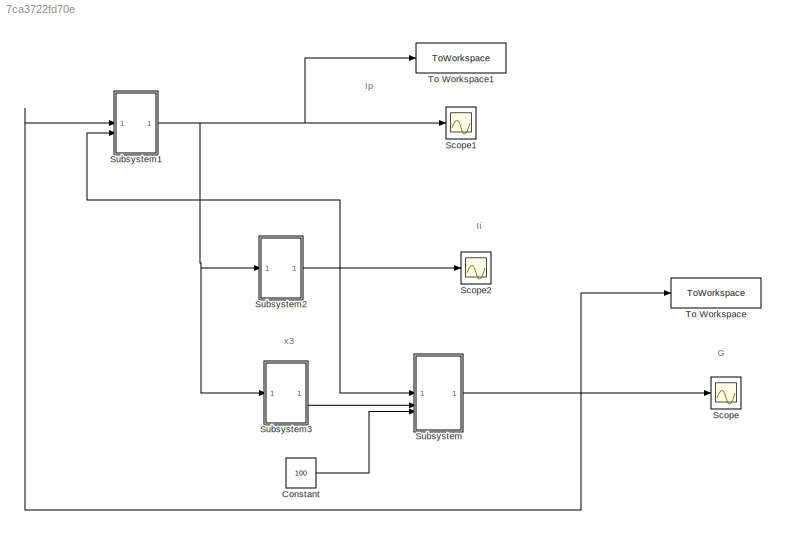
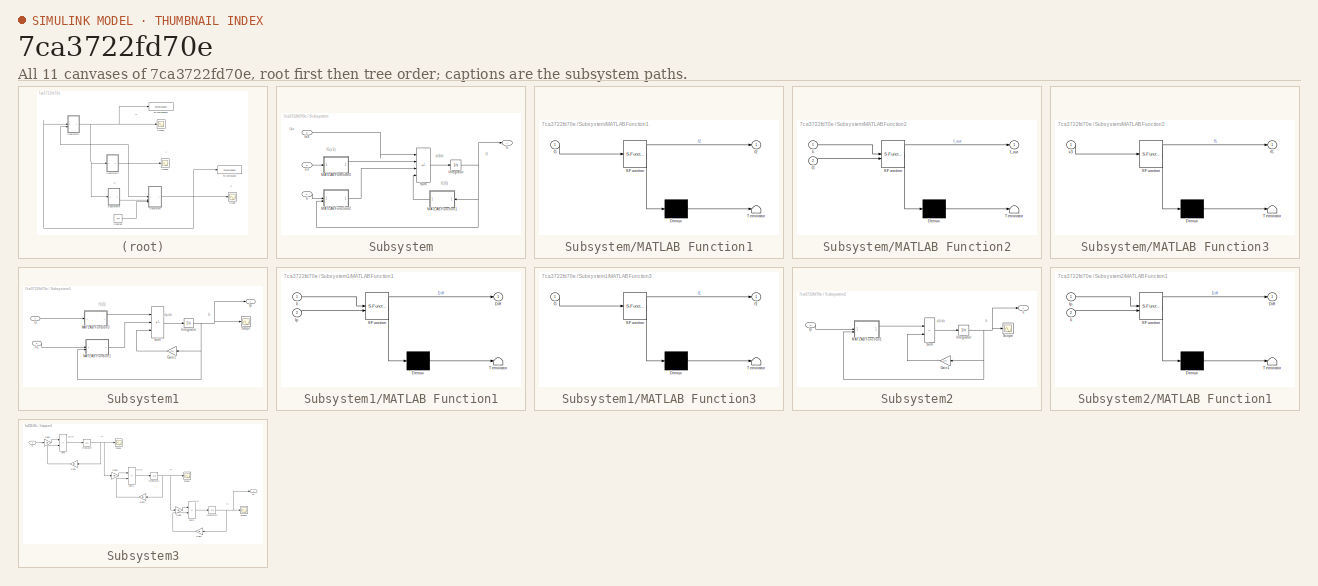
[diagram: thumbnail index - all 11 canvases of the model, root first then tree order]
MODEL slx_7ca3722fd70e
KIND model
CONFIG AbsTol = auto
CONFIG EnableMultiTasking = off
CONFIG FixedStep = auto
CONFIG MaxStep = auto
CONFIG MinStep = auto
CONFIG RelTol = 1e-3
CONFIG SampleTimeConstraint = Unconstrained
CONFIG SolverName = VariableStepAuto
CONFIG StartTime = 0.0
CONFIG StopTime = 1000
BLOCK [Constant] Constant
  Value = 100
BLOCK [Scope] Scope
  Floating = off
  NumInputPorts = 1
  ScopeSpecificationString = Simulink.scopes.TimeScopeBlockCfg('CurrentConfiguration', extmgr.ConfigurationSet(extmgr.Configuration('Core','General UI',true),extmgr.Configuration('Core','Source UI',true),extmgr.Configuration('Sources','WiredSimulink',true,'DataLoggingVariableName','ScopeData4'),extmgr.Configuration('Visuals','Time Domain',true,'SerializedDisplays',{struct('MinYLimReal','11127.96055','MaxYLimReal','12534.40582...<+1449ch>
BLOCK [Scope] Scope1
  Floating = off
  NumInputPorts = 1
  ScopeSpecificationString = Simulink.scopes.TimeScopeBlockCfg('CurrentConfiguration', extmgr.ConfigurationSet(extmgr.Configuration('Core','General UI',true),extmgr.Configuration('Core','Source UI',true),extmgr.Configuration('Sources','WiredSimulink',true,'DataLoggingVariableName','ScopeData5'),extmgr.Configuration('Visuals','Time Domain',true,'SerializedDisplays',{struct('MinYLimReal','39.20818','MaxYLimReal','143.79417','YL...<+1379ch>
BLOCK [Scope] Scope2
  Floating = off
  NumInputPorts = 1
  ScopeSpecificationString = Simulink.scopes.TimeScopeBlockCfg('CurrentConfiguration', extmgr.ConfigurationSet(extmgr.Configuration('Core','General UI',true),extmgr.Configuration('Core','Source UI',true),extmgr.Configuration('Sources','WiredSimulink',true,'DataLoggingVariableName','ScopeData6'),extmgr.Configuration('Visuals','Time Domain',true),extmgr.Configuration('Tools','Plot Navigation',true),extmgr.Configuration('Tools',...<+40ch>
BLOCK [SubSystem] Subsystem
BLOCK [Outport] Subsystem/G
BLOCK [Inport] Subsystem/Ii
BLOCK [Inport] Subsystem/In3
  Port = 3
BLOCK [Integrator] Subsystem/Integrator
  InitialCondition = G_0
BLOCK [SubSystem] Subsystem/MATLAB Function1
  ErrorFcn = Stateflow.Translate.translate
  PermitHierarchicalResolution = ExplicitOnly
  SFBlockType = MATLAB Function
  TreatAsAtomicUnit = on
BLOCK [Demux] Subsystem/MATLAB Function1/ Demux 
  Outputs = 1
BLOCK [S-Function] Subsystem/MATLAB Function1/ SFunction 
  EnableBusSupport = on
  FunctionName = sf_sfun
  PortCounts = [1 2]
  SFcnIsStateOwnerBlock = off
  SFunctionDeploymentMode = off
  Tag = Stateflow S-Function 1
BLOCK [Terminator] Subsystem/MATLAB Function1/ Terminator 
BLOCK [Inport] Subsystem/MATLAB Function1/G
BLOCK [Outport] Subsystem/MATLAB Function1/f2
  VectorParamsAs1DForOutWhenUnconnected = off
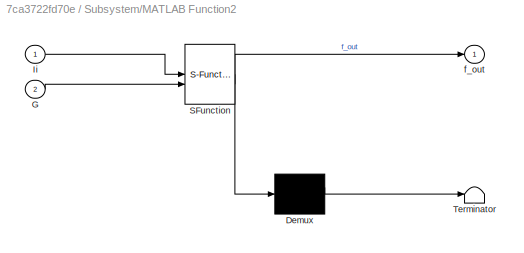
BLOCK [SubSystem] Subsystem/MATLAB Function2
  ErrorFcn = Stateflow.Translate.translate
  PermitHierarchicalResolution = ExplicitOnly
  SFBlockType = MATLAB Function
  TreatAsAtomicUnit = on
BLOCK [Demux] Subsystem/MATLAB Function2/ Demux 
  Outputs = 1
BLOCK [S-Function] Subsystem/MATLAB Function2/ SFunction 
  EnableBusSupport = on
  FunctionName = sf_sfun
  PortCounts = [2 2]
  SFcnIsStateOwnerBlock = off
  SFunctionDeploymentMode = off
  Tag = Stateflow S-Function 3
BLOCK [Terminator] Subsystem/MATLAB Function2/ Terminator 
BLOCK [Inport] Subsystem/MATLAB Function2/G
  Port = 2
BLOCK [Inport] Subsystem/MATLAB Function2/Ii
BLOCK [Outport] Subsystem/MATLAB Function2/f_out
  VectorParamsAs1DForOutWhenUnconnected = off
BLOCK [SubSystem] Subsystem/MATLAB Function3
  ErrorFcn = Stateflow.Translate.translate
  PermitHierarchicalResolution = ExplicitOnly
  SFBlockType = MATLAB Function
  TreatAsAtomicUnit = on
BLOCK [Demux] Subsystem/MATLAB Function3/ Demux 
  Outputs = 1
BLOCK [S-Function] Subsystem/MATLAB Function3/ SFunction 
  EnableBusSupport = on
  FunctionName = sf_sfun
  PortCounts = [1 2]
  SFcnIsStateOwnerBlock = off
  SFunctionDeploymentMode = off
  Tag = Stateflow S-Function 4
BLOCK [Terminator] Subsystem/MATLAB Function3/ Terminator 
BLOCK [Outport] Subsystem/MATLAB Function3/f5
  VectorParamsAs1DForOutWhenUnconnected = off
BLOCK [Inport] Subsystem/MATLAB Function3/x3
BLOCK [Sum] Subsystem/Sum
  IconShape = rectangular
  Inputs = |++--
BLOCK [Inport] Subsystem/x3
  Port = 2
BLOCK [SubSystem] Subsystem1
BLOCK [Inport] Subsystem1/G
BLOCK [Gain] Subsystem1/Gain1
  Gain = 1/tp
BLOCK [Inport] Subsystem1/Ii1
  Port = 2
BLOCK [Integrator] Subsystem1/Integrator
  InitialCondition = Ip_0
BLOCK [Outport] Subsystem1/Ip
BLOCK [SubSystem] Subsystem1/MATLAB Function1
  ErrorFcn = Stateflow.Translate.translate
  PermitHierarchicalResolution = ExplicitOnly
  SFBlockType = MATLAB Function
  TreatAsAtomicUnit = on
BLOCK [Demux] Subsystem1/MATLAB Function1/ Demux 
  Outputs = 1
BLOCK [S-Function] Subsystem1/MATLAB Function1/ SFunction 
  EnableBusSupport = on
  FunctionName = sf_sfun
  PortCounts = [2 2]
  SFcnIsStateOwnerBlock = off
  SFunctionDeploymentMode = off
  Tag = Stateflow S-Function 2
BLOCK [Terminator] Subsystem1/MATLAB Function1/ Terminator 
BLOCK [Outport] Subsystem1/MATLAB Function1/Diff
  VectorParamsAs1DForOutWhenUnconnected = off
BLOCK [Inport] Subsystem1/MATLAB Function1/Ii
BLOCK [Inport] Subsystem1/MATLAB Function1/Ip
  Port = 2
BLOCK [SubSystem] Subsystem1/MATLAB Function3
  ErrorFcn = Stateflow.Translate.translate
  PermitHierarchicalResolution = ExplicitOnly
  SFBlockType = MATLAB Function
  TreatAsAtomicUnit = on
BLOCK [Demux] Subsystem1/MATLAB Function3/ Demux 
  Outputs = 1
BLOCK [S-Function] Subsystem1/MATLAB Function3/ SFunction 
  EnableBusSupport = on
  FunctionName = sf_sfun
  PortCounts = [1 2]
  SFcnIsStateOwnerBlock = off
  SFunctionDeploymentMode = off
  Tag = Stateflow S-Function 8
BLOCK [Terminator] Subsystem1/MATLAB Function3/ Terminator 
BLOCK [Inport] Subsystem1/MATLAB Function3/G
BLOCK [Outport] Subsystem1/MATLAB Function3/f1
  VectorParamsAs1DForOutWhenUnconnected = off
BLOCK [Scope] Subsystem1/Scope
  Floating = off
  NumInputPorts = 1
  ScopeSpecificationString = Simulink.scopes.TimeScopeBlockCfg('CurrentConfiguration', extmgr.ConfigurationSet(extmgr.Configuration('Core','General UI',true),extmgr.Configuration('Core','Source UI',true),extmgr.Configuration('Sources','WiredSimulink',true,'DataLoggingVariableName','ScopeData1'),extmgr.Configuration('Visuals','Time Domain',true),extmgr.Configuration('Tools','Plot Navigation',true),extmgr.Configuration('Tools',...<+40ch>  <repeated x3 — deduplicated; at blocks: Scope>
BLOCK [Sum] Subsystem1/Sum
  IconShape = rectangular
  Inputs = |+--
BLOCK [SubSystem] Subsystem2
BLOCK [Gain] Subsystem2/Gain1
  Gain = 1/ti
BLOCK [Outport] Subsystem2/Ii
BLOCK [Integrator] Subsystem2/Integrator
  InitialCondition = Ii_0
BLOCK [Inport] Subsystem2/Ip
BLOCK [SubSystem] Subsystem2/MATLAB Function1
  ErrorFcn = Stateflow.Translate.translate
  PermitHierarchicalResolution = ExplicitOnly
  SFBlockType = MATLAB Function
  TreatAsAtomicUnit = on
BLOCK [Demux] Subsystem2/MATLAB Function1/ Demux 
  Outputs = 1
BLOCK [S-Function] Subsystem2/MATLAB Function1/ SFunction 
  EnableBusSupport = on
  FunctionName = sf_sfun
  PortCounts = [2 2]
  SFcnIsStateOwnerBlock = off
  SFunctionDeploymentMode = off
  Tag = Stateflow S-Function 5
BLOCK [Terminator] Subsystem2/MATLAB Function1/ Terminator 
BLOCK [Outport] Subsystem2/MATLAB Function1/Diff
  VectorParamsAs1DForOutWhenUnconnected = off
BLOCK [Inport] Subsystem2/MATLAB Function1/Ii
  Port = 2
BLOCK [Inport] Subsystem2/MATLAB Function1/Ip
BLOCK [Scope] Subsystem2/Scope
  Floating = off
  NumInputPorts = 1
BLOCK [Sum] Subsystem2/Sum
  IconShape = rectangular
  Inputs = |+-
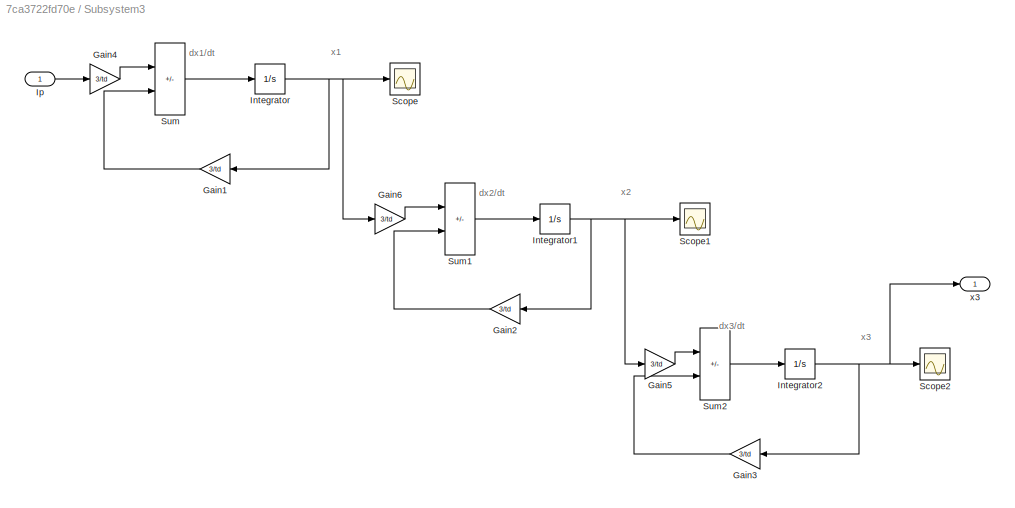
BLOCK [SubSystem] Subsystem3
BLOCK [Gain] Subsystem3/Gain1
  Gain = 3/td
BLOCK [Gain] Subsystem3/Gain2
  Gain = 3/td
BLOCK [Gain] Subsystem3/Gain3
  Gain = 3/td
BLOCK [Gain] Subsystem3/Gain4
  Gain = 3/td
BLOCK [Gain] Subsystem3/Gain5
  Gain = 3/td
BLOCK [Gain] Subsystem3/Gain6
  Gain = 3/td
BLOCK [Integrator] Subsystem3/Integrator
  InitialCondition = h_10
BLOCK [Integrator] Subsystem3/Integrator1
  InitialCondition = h_20
BLOCK [Integrator] Subsystem3/Integrator2
  InitialCondition = h_30
BLOCK [Inport] Subsystem3/Ip
BLOCK [Scope] Subsystem3/Scope
  Floating = off
  NumInputPorts = 1
BLOCK [Scope] Subsystem3/Scope1
  Floating = off
  NumInputPorts = 1
  ScopeSpecificationString = Simulink.scopes.TimeScopeBlockCfg('CurrentConfiguration', extmgr.ConfigurationSet(extmgr.Configuration('Core','General UI',true),extmgr.Configuration('Core','Source UI',true),extmgr.Configuration('Sources','WiredSimulink',true,'DataLoggingVariableName','ScopeData2'),extmgr.Configuration('Visuals','Time Domain',true),extmgr.Configuration('Tools','Plot Navigation',true),extmgr.Configuration('Tools',...<+40ch>
BLOCK [Scope] Subsystem3/Scope2
  Floating = off
  NumInputPorts = 1
  ScopeSpecificationString = Simulink.scopes.TimeScopeBlockCfg('CurrentConfiguration', extmgr.ConfigurationSet(extmgr.Configuration('Core','General UI',true),extmgr.Configuration('Core','Source UI',true),extmgr.Configuration('Sources','WiredSimulink',true,'DataLoggingVariableName','ScopeData3'),extmgr.Configuration('Visuals','Time Domain',true),extmgr.Configuration('Tools','Plot Navigation',true),extmgr.Configuration('Tools',...<+40ch>
BLOCK [Sum] Subsystem3/Sum
  IconShape = rectangular
  Inputs = |+-
BLOCK [Sum] Subsystem3/Sum1
  IconShape = rectangular
  Inputs = |+-
BLOCK [Sum] Subsystem3/Sum2
  IconShape = rectangular
  Inputs = |+-
BLOCK [Outport] Subsystem3/x3
BLOCK [ToWorkspace] To Workspace
  FixptAsFi = on
  MaxDataPoints = inf
  SampleTime = -1
  Save2DSignal = 2-D array (concatenate along first dimension)
  VariableName = G
BLOCK [ToWorkspace] To Workspace1
  FixptAsFi = on
  MaxDataPoints = inf
  SampleTime = -1
  Save2DSignal = 2-D array (concatenate along first dimension)
  VariableName = Ip
ANNOTATION (root): G
ANNOTATION (root): Ii
ANNOTATION (root): Ip
ANNOTATION (root): x3
ANNOTATION Subsystem: G
ANNOTATION Subsystem: Uin
ANNOTATION Subsystem: dG/dt
ANNOTATION Subsystem: f2(G)
ANNOTATION Subsystem: f5(x3)
ANNOTATION Subsystem1: G
ANNOTATION Subsystem1: dIp/dt
ANNOTATION Subsystem1: f1(G)
ANNOTATION Subsystem2: Ii
ANNOTATION Subsystem2: dIi/dt
ANNOTATION Subsystem3: dx1/dt
ANNOTATION Subsystem3: dx2/dt
ANNOTATION Subsystem3: dx3/dt
ANNOTATION Subsystem3: x1
ANNOTATION Subsystem3: x2
ANNOTATION Subsystem3: x3
LINE Constant:1 -> Subsystem:3
LINE Subsystem/Ii:1 -> Subsystem/MATLAB Function2:1
LINE Subsystem/In3:1 -> Subsystem/Sum:1
NET Subsystem/Integrator:1 -> Subsystem/G:1, Subsystem/MATLAB Function1:1, Subsystem/MATLAB Function2:2
LINE Subsystem/MATLAB Function1:1 -> Subsystem/Sum:4
LINE Subsystem/MATLAB Function2:1 -> Subsystem/Sum:3
LINE Subsystem/MATLAB Function3:1 -> Subsystem/Sum:2
LINE Subsystem/Sum:1 -> Subsystem/Integrator:1
LINE Subsystem/x3:1 -> Subsystem/MATLAB Function3:1
LINE Subsystem1/G:1 -> Subsystem1/MATLAB Function3:1
LINE Subsystem1/Gain1:1 -> Subsystem1/Sum:3
LINE Subsystem1/Ii1:1 -> Subsystem1/MATLAB Function1:1
NET Subsystem1/Integrator:1 -> Subsystem1/Gain1:1, Subsystem1/Ip:1, Subsystem1/MATLAB Function1:2, Subsystem1/Scope:1
LINE Subsystem1/MATLAB Function1:1 -> Subsystem1/Sum:2
LINE Subsystem1/MATLAB Function3:1 -> Subsystem1/Sum:1
LINE Subsystem1/Sum:1 -> Subsystem1/Integrator:1
NET Subsystem1:1 -> Scope1:1, Subsystem2:1, Subsystem3:1, To Workspace1:1
LINE Subsystem2/Gain1:1 -> Subsystem2/Sum:2
NET Subsystem2/Integrator:1 -> Subsystem2/Gain1:1, Subsystem2/Ii:1, Subsystem2/MATLAB Function1:2, Subsystem2/Scope:1
LINE Subsystem2/Ip:1 -> Subsystem2/MATLAB Function1:1
LINE Subsystem2/MATLAB Function1:1 -> Subsystem2/Sum:1
LINE Subsystem2/Sum:1 -> Subsystem2/Integrator:1
NET Subsystem2:1 -> Scope2:1, Subsystem1:2, Subsystem:1
LINE Subsystem3/Gain1:1 -> Subsystem3/Sum:2
LINE Subsystem3/Gain2:1 -> Subsystem3/Sum1:2
LINE Subsystem3/Gain3:1 -> Subsystem3/Sum2:2
LINE Subsystem3/Gain4:1 -> Subsystem3/Sum:1
LINE Subsystem3/Gain5:1 -> Subsystem3/Sum2:1
LINE Subsystem3/Gain6:1 -> Subsystem3/Sum1:1
NET Subsystem3/Integrator1:1 -> Subsystem3/Gain2:1, Subsystem3/Gain5:1, Subsystem3/Scope1:1
NET Subsystem3/Integrator2:1 -> Subsystem3/Gain3:1, Subsystem3/Scope2:1, Subsystem3/x3:1
NET Subsystem3/Integrator:1 -> Subsystem3/Gain1:1, Subsystem3/Gain6:1, Subsystem3/Scope:1
LINE Subsystem3/Ip:1 -> Subsystem3/Gain4:1
LINE Subsystem3/Sum1:1 -> Subsystem3/Integrator1:1
LINE Subsystem3/Sum2:1 -> Subsystem3/Integrator2:1
LINE Subsystem3/Sum:1 -> Subsystem3/Integrator:1
LINE Subsystem3:1 -> Subsystem:2
NET Subsystem:1 -> Scope:1, Subsystem1:1, To Workspace:1
note: NET lines group one-source signal fan-out (src -> all destinations, sorted); 1:1 wires keep LINE
CHART Subsystem1/MATLAB Function1 states=1 transitions=1
  STATE_LABEL 'eML_blk_kernel()'
  STATE_LABEL "SCRIPT:\nfunction Diff = fcn(Ii,Ip)\n% Constants\nVp = 3;  %'Vp' [L] \nVi = 11; %'Vp' [L] \n% Vg = 10; %'Vp' [L]\nE = 0.2; % [L min^-1]\n% tp = 6;  % min\n% ti = 100;% min\n% td = 36;% min\n% Rm = 210;% [mU min^-1]{Lui 2008}\n% % p.Rm = 21;% [mU min^-1]{Tolic 2000}\n% a1 = 300; %mg/L\n% C1 = 2000;% mg/L\n% C2 = 144;% mg/L\n% C3 = 1000;% mg/L\n% C4 = 80;% mU/L\n% C5 = 26;% mU/L\n% Ub = 72;% mg/min\n% U0 = 40;% mg/min...<+228ch>"
CHART Subsystem/MATLAB Function2 states=1 transitions=1
  STATE_LABEL 'eML_blk_kernel()'
  STATE_LABEL "SCRIPT:\nfunction f_out = fcn(Ii,G)\n% Constants\n% Vp = 3;  %'Vp' [L] \n% Vi = 11; %'Vp' [L] \n% Vg = 10; %'Vp' [L]\n% E = 0.2; % [L min^-1]\n% tp = 6;  % min\n% ti = 100;% min\n% td = 36;% min\n% Rm = 210;% [mU min^-1]{Lui 2008}\n% % p.Rm = 21;% [mU min^-1]{Tolic 2000}\n% a1 = 300; %mg/L\n% C1 = 2000;% mg/L\n% C2 = 144;% mg/L\n% C3 = 1000;% mg/L\n% C4 = 80;% mU/L\n% C5 = 26;% mU/L\n% Ub = 72;% mg/min\n% U0 = 40;% ...<+448ch>"
CHART Subsystem/MATLAB Function3 states=1 transitions=1
  STATE_LABEL 'eML_blk_kernel()'
  STATE_LABEL "SCRIPT:\nfunction f5 = fcn(x3)\n% Constants\n% Vp = 3;  %'Vp' [L] \n% Vi = 11; %'Vp' [L] \n% Vg = 10; %'Vp' [L]\n% E = 0.2; % [L min^-1]\n% tp = 6;  % min\n% ti = 100;% min\n% td = 36;% min\n% Rm = 210;% [mU min^-1]{Lui 2008}\n% % p.Rm = 21;% [mU min^-1]{Tolic 2000}\n% a1 = 300; %mg/L\n% C1 = 2000;% mg/L\n% C2 = 144;% mg/L\n% C3 = 1000;% mg/L\n% C4 = 80;% mU/L\n% C5 = 26;% mU/L\n% Ub = 72;% mg/min\n% U0 = 40;% mg/mi...<+206ch>"
CHART Subsystem2/MATLAB Function1 states=1 transitions=1
  STATE_LABEL 'eML_blk_kernel()'
  STATE_LABEL "SCRIPT:\nfunction Diff = fcn(Ip,Ii)\n% Constants\nVp = 3;  %'Vp' [L] \nVi = 11; %'Vp' [L] \n% Vg = 10; %'Vp' [L]\nE = 0.2; % [L min^-1]\n% tp = 6;  % min\n% ti = 100;% min\n% td = 36;% min\n% Rm = 210;% [mU min^-1]{Lui 2008}\n% % p.Rm = 21;% [mU min^-1]{Tolic 2000}\n% a1 = 300; %mg/L\n% C1 = 2000;% mg/L\n% C2 = 144;% mg/L\n% C3 = 1000;% mg/L\n% C4 = 80;% mU/L\n% C5 = 26;% mU/L\n% Ub = 72;% mg/min\n% U0 = 40;% mg/min...<+228ch>"
CHART Subsystem1/MATLAB Function3 states=1 transitions=1
  STATE_LABEL 'eML_blk_kernel()'
  STATE_LABEL "SCRIPT:\nfunction f1 = fcn(G)\n% Constants\n% Vp = 3;  %'Vp' [L] \n% Vi = 11; %'Vp' [L] \n% Vg = 10; %'Vp' [L]\n% E = 0.2; % [L min^-1]\n% tp = 6;  % min\n% ti = 100;% min\n% td = 36;% min\n% Rm = 210;% [mU min^-1]{Lui 2008}\n% % p.Rm = 21;% [mU min^-1]{Tolic 2000}\n% a1 = 300; %mg/L\n% C1 = 2000;% mg/L\n% C2 = 144;% mg/L\n% C3 = 1000;% mg/L\n% C4 = 80;% mU/L\n% C5 = 26;% mU/L\n% Ub = 72;% mg/min\n% U0 = 40;% mg/min...<+253ch>"
CHART Subsystem/MATLAB Function1 states=1 transitions=1
  STATE_LABEL 'eML_blk_kernel()'
  STATE_LABEL "SCRIPT:\nfunction f2 = fcn(G)\n% Constants\n% Vp = 3;  %'Vp' [L] \n% Vi = 11; %'Vp' [L] \n% Vg = 10; %'Vp' [L]\n% E = 0.2; % [L min^-1]\n% tp = 6;  % min\n% ti = 100;% min\n% td = 36;% min\n% Rm = 210;% [mU min^-1]{Lui 2008}\n% % p.Rm = 21;% [mU min^-1]{Tolic 2000}\n% a1 = 300; %mg/L\n% C1 = 2000;% mg/L\n% C2 = 144;% mg/L\n% C3 = 1000;% mg/L\n% C4 = 80;% mU/L\n% C5 = 26;% mU/L\n% Ub = 72;% mg/min\n% U0 = 40;% mg/min...<+232ch>"
CHART  states=0 transitions=0
CHART  states=0 transitions=0
CHART  states=0 transitions=0
CHART  states=0 transitions=0
CHART  states=0 transitions=0
CHART  states=0 transitions=0
